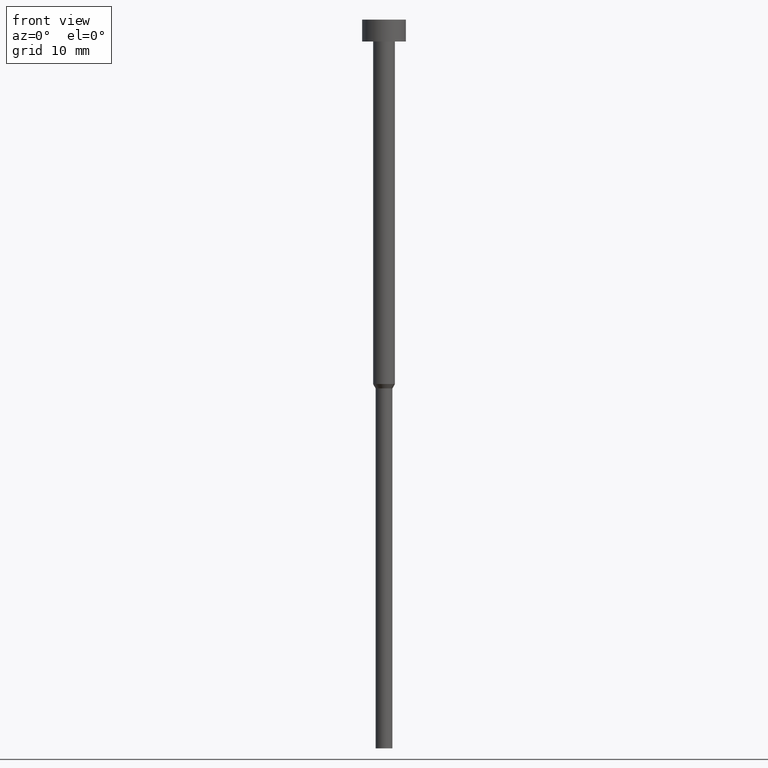
[diagram: clean part render]
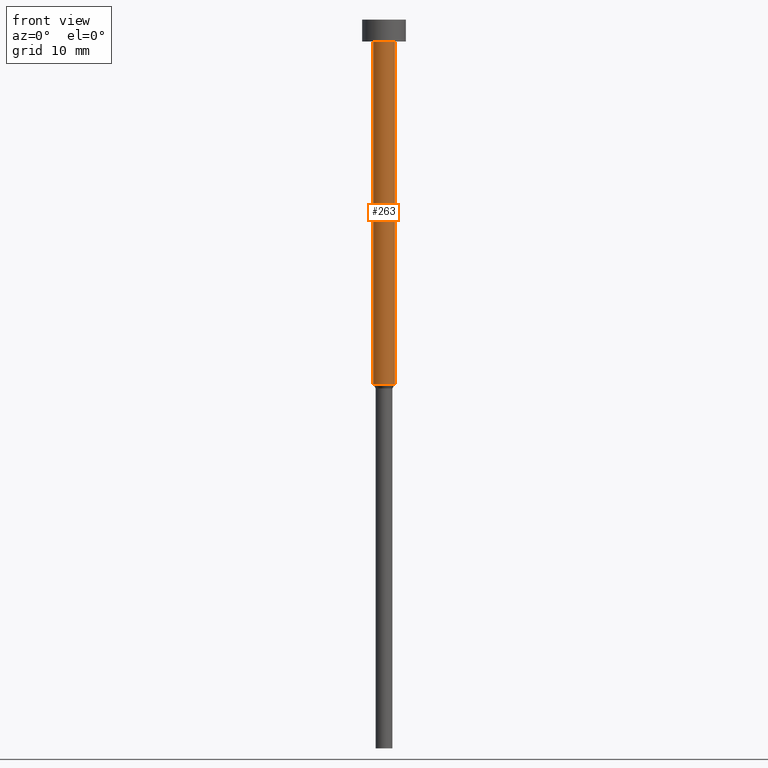
[diagram: same view with one face highlighted and labeled with its STEP entity id]
A machine part, front view. The second image highlights one B-rep face of the part: STEP entity #263.
In plain terms, the highlighted cylindrical surface (edge-blend (fillet) strip) has radius 1.5 mm, axis along (-0, -0, 1).
Its self-contained STEP definition (entity closure, byte-faithful):
#15 = ORIENTED_EDGE ( 'NONE', *, *, #318, .T. ) ;
#24 = FACE_OUTER_BOUND ( 'NONE', #273, .T. ) ;
#30 = CIRCLE ( 'NONE', #342, 1.500000000000000000 ) ;
#35 = VERTEX_POINT ( 'NONE', #238 ) ;
#39 = CARTESIAN_POINT ( 'NONE',  ( 0.000000000000000000, 0.000000000000000000, -3.000000000000000888 ) ) ;
#49 = DIRECTION ( 'NONE',  ( 1.000000000000000000, 0.000000000000000000, 0.000000000000000000 ) ) ;
#73 = CARTESIAN_POINT ( 'NONE',  ( 1.500000000000000000, 0.000000000000000000, -3.000000000000000888 ) ) ;
#87 = ORIENTED_EDGE ( 'NONE', *, *, #307, .T. ) ;
#91 = CIRCLE ( 'NONE', #283, 1.500000000000000000 ) ;
#92 = CARTESIAN_POINT ( 'NONE',  ( 1.500000000000000000, 0.000000000000000000, 0.000000000000000000 ) ) ;
#98 = ORIENTED_EDGE ( 'NONE', *, *, #190, .F. ) ;
#99 = DIRECTION ( 'NONE',  ( 1.000000000000000000, 0.000000000000000000, 0.000000000000000000 ) ) ;
#116 = DIRECTION ( 'NONE',  ( -0.000000000000000000, -0.000000000000000000, 1.000000000000000000 ) ) ;
#122 = CARTESIAN_POINT ( 'NONE',  ( 1.500000000000000000, 0.000000000000000000, -50.00000000000000000 ) ) ;
#138 = LINE ( 'NONE', #241, #252 ) ;
#151 = VERTEX_POINT ( 'NONE', #122 ) ;
#171 = DIRECTION ( 'NONE',  ( -0.000000000000000000, -0.000000000000000000, 1.000000000000000000 ) ) ;
#174 = DIRECTION ( 'NONE',  ( -0.000000000000000000, -0.000000000000000000, 1.000000000000000000 ) ) ;
#189 = DIRECTION ( 'NONE',  ( -0.000000000000000000, -0.000000000000000000, 1.000000000000000000 ) ) ;
#190 = EDGE_CURVE ( 'NONE', #35, #233, #91, .T. ) ;
#206 = EDGE_CURVE ( 'NONE', #281, #35, #138, .T. ) ;
#216 = CYLINDRICAL_SURFACE ( 'NONE', #303, 1.500000000000000000 ) ;
#228 = VECTOR ( 'NONE', #171, 1000.000000000000000 ) ;
#233 = VERTEX_POINT ( 'NONE', #73 ) ;
#238 = CARTESIAN_POINT ( 'NONE',  ( -1.500000000000000000, 1.836970198721029934E-16, -3.000000000000000888 ) ) ;
#241 = CARTESIAN_POINT ( 'NONE',  ( -1.500000000000000000, 1.836970198721029934E-16, 0.000000000000000000 ) ) ;
#252 = VECTOR ( 'NONE', #116, 1000.000000000000000 ) ;
#263 = ADVANCED_FACE ( 'NONE', ( #24 ), #216, .T. ) ;
#264 = CARTESIAN_POINT ( 'NONE',  ( -1.500000000000000000, 1.836970198721029934E-16, -50.00000000000000000 ) ) ;
#268 = DIRECTION ( 'NONE',  ( 1.000000000000000000, 0.000000000000000000, 0.000000000000000000 ) ) ;
#273 = EDGE_LOOP ( 'NONE', ( #301, #15, #87, #98 ) ) ;
#278 = CARTESIAN_POINT ( 'NONE',  ( 0.000000000000000000, 0.000000000000000000, -50.00000000000000000 ) ) ;
#281 = VERTEX_POINT ( 'NONE', #264 ) ;
#283 = AXIS2_PLACEMENT_3D ( 'NONE', #39, #189, #268 ) ;
#290 = CARTESIAN_POINT ( 'NONE',  ( 0.000000000000000000, 0.000000000000000000, 0.000000000000000000 ) ) ;
#294 = DIRECTION ( 'NONE',  ( -0.000000000000000000, -0.000000000000000000, 1.000000000000000000 ) ) ;
#301 = ORIENTED_EDGE ( 'NONE', *, *, #206, .F. ) ;
#303 = AXIS2_PLACEMENT_3D ( 'NONE', #290, #294, #49 ) ;
#307 = EDGE_CURVE ( 'NONE', #151, #233, #321, .T. ) ;
#318 = EDGE_CURVE ( 'NONE', #281, #151, #30, .T. ) ;
#321 = LINE ( 'NONE', #92, #228 ) ;
#342 = AXIS2_PLACEMENT_3D ( 'NONE', #278, #174, #99 ) ;